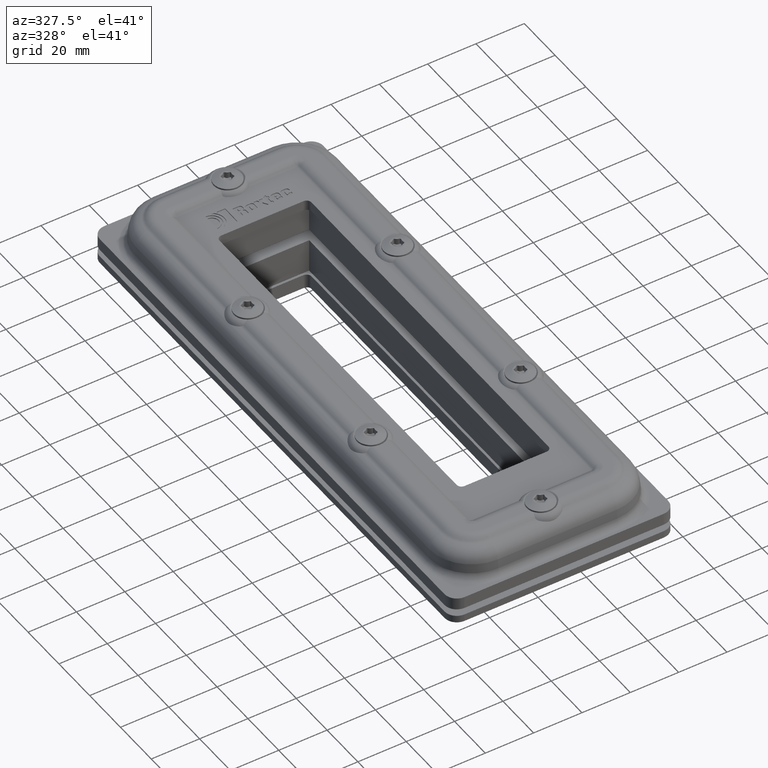
[diagram: clean part render]
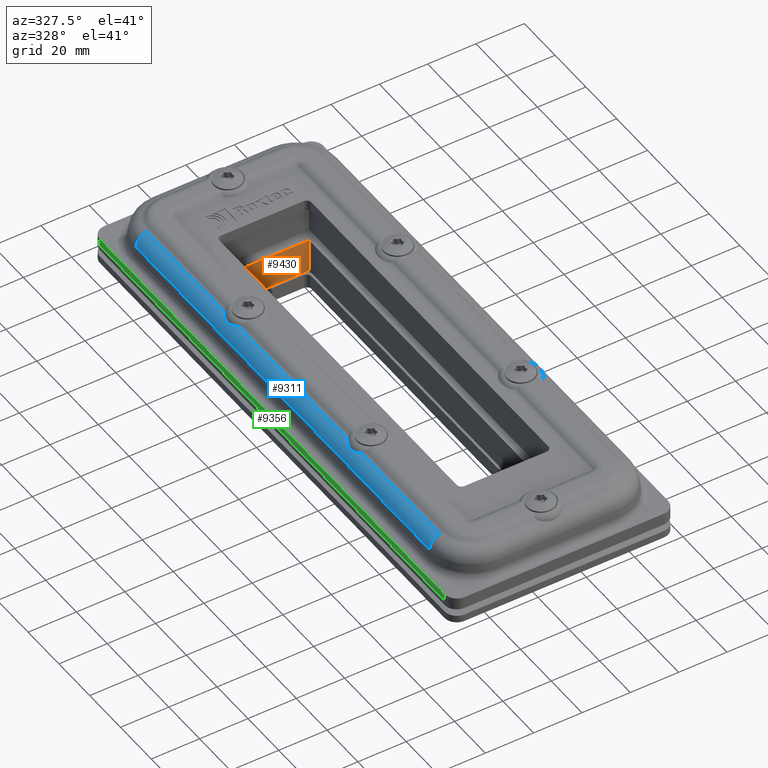
[diagram: same view with three faces highlighted in distinct colors, each labeled with its STEP entity id]
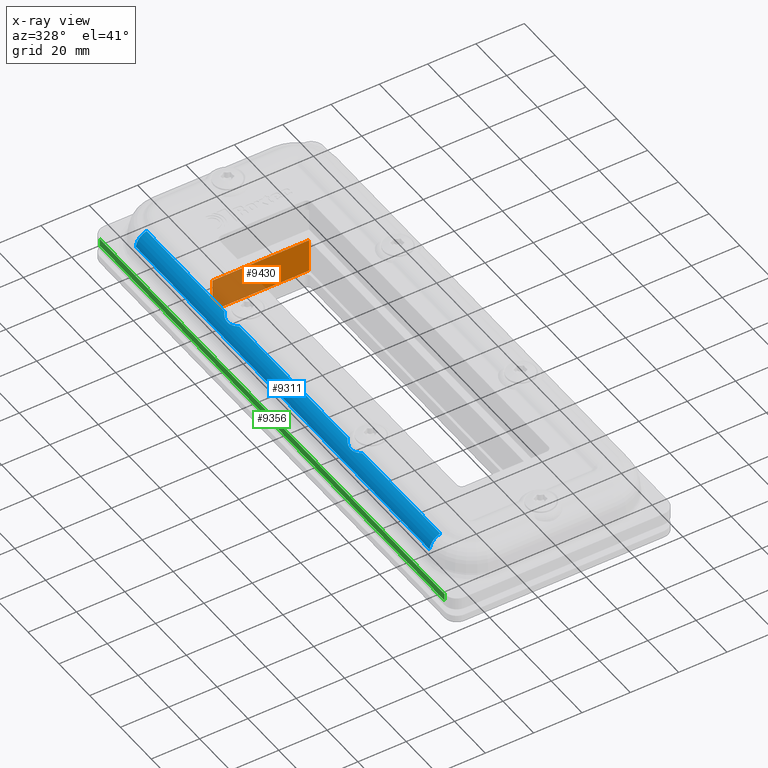
[diagram: x-ray of the same camera — body ghosted, the three highlighted faces saturated]
A machine part, auxiliary view with three faces highlighted in distinct colors.
The next image is the same camera in x-ray (body ghosted, the three faces saturated) — at least one of them is partly hidden behind the body in this view.
Their STEP definitions:

[orange] entity #9430 — the highlighted planar face has unit normal (0, 1, 0).
#361=PLANE('',#10258);
#835=FACE_OUTER_BOUND('',#1419,.T.);
#1419=EDGE_LOOP('',(#8098,#8099,#8100,#8101));
#2415=LINE('',#17274,#3071);
#2416=LINE('',#17276,#3072);
#2417=LINE('',#17278,#3073);
#2418=LINE('',#17279,#3074);
#3071=VECTOR('',#12407,1.);
#3072=VECTOR('',#12408,1.);
#3073=VECTOR('',#12409,1.);
#3074=VECTOR('',#12410,1.);
#4356=VERTEX_POINT('',#17272);
#4357=VERTEX_POINT('',#17273);
#4358=VERTEX_POINT('',#17275);
#4359=VERTEX_POINT('',#17277);
#5645=EDGE_CURVE('',#4356,#4357,#2415,.T.);
#5646=EDGE_CURVE('',#4356,#4358,#2416,.T.);
#5647=EDGE_CURVE('',#4358,#4359,#2417,.T.);
#5648=EDGE_CURVE('',#4357,#4359,#2418,.T.);
#8098=ORIENTED_EDGE('',*,*,#5645,.F.);
#8099=ORIENTED_EDGE('',*,*,#5646,.T.);
#8100=ORIENTED_EDGE('',*,*,#5647,.T.);
#8101=ORIENTED_EDGE('',*,*,#5648,.F.);
#9430=ADVANCED_FACE('',(#835),#361,.F.);
#10258=AXIS2_PLACEMENT_3D('',#17271,#12405,#12406);
#12405=DIRECTION('center_axis',(2.08154245121876E-16,1.,4.49084690960502E-16));
#12406=DIRECTION('ref_axis',(1.,-2.08154245121876E-16,-6.41847686111422E-17));
#12407=DIRECTION('',(1.,-2.08154245121876E-16,-6.41847686111422E-17));
#12408=DIRECTION('',(-6.41847686111421E-17,4.49084690960502E-16,-1.));
#12409=DIRECTION('',(1.,-2.08154245121876E-16,-6.41847686111422E-17));
#12410=DIRECTION('',(-6.41847686111421E-17,4.49084690960502E-16,-1.));
#17271=CARTESIAN_POINT('Origin',(-2.,8.00000000000001,-1.60000000000003));
#17272=CARTESIAN_POINT('',(-2.,8.00000000000001,-1.60000000000003));
#17273=CARTESIAN_POINT('',(2.,8.00000000000001,-1.60000000000003));
#17274=CARTESIAN_POINT('',(-1.87,8.00000000000001,-1.60000000000003));
#17275=CARTESIAN_POINT('',(-2.,8.00000000000001,-3.00000000000003));
#17276=CARTESIAN_POINT('',(-2.,8.00000000000001,-1.60000000000003));
#17277=CARTESIAN_POINT('',(2.,8.00000000000001,-3.00000000000003));
#17278=CARTESIAN_POINT('',(-2.,8.00000000000001,-3.00000000000003));
#17279=CARTESIAN_POINT('',(2.,8.00000000000001,-1.60000000000003));

[blue] entity #9311 — the highlighted cylindrical surface (edge-blend (fillet) strip) has radius 6 mm, axis along (0, 1, 0).
#716=FACE_OUTER_BOUND('',#1294,.T.);
#1294=EDGE_LOOP('',(#7470,#7471,#7472,#7473,#7474,#7475,#7476,#7477));
#1730=B_SPLINE_CURVE_WITH_KNOTS('',3,(#15997,#15998,#15999,#16000,#16001,
#16002,#16003,#16004,#16005,#16006,#16007,#16008),.UNSPECIFIED.,.F.,.F.,
(4,2,2,2,2,4),(-1.91895913354319,-1.86349717679421,-1.59797408986448,-1.34982614163297,
-1.0833091023722,-0.843342349377996),.UNSPECIFIED.);
#1743=B_SPLINE_CURVE_WITH_KNOTS('',3,(#16142,#16143,#16144,#16145,#16146,
#16147,#16148,#16149,#16150,#16151,#16152,#16153),.UNSPECIFIED.,.F.,.F.,
(4,2,2,2,2,4),(0.843512230884209,1.08656045757677,1.35271131750076,1.60078708755334,
1.86676256612396,1.91929153316141),.UNSPECIFIED.);
#2311=LINE('',#16140,#2967);
#2312=LINE('',#16155,#2968);
#2313=LINE('',#16159,#2969);
#2314=LINE('',#16162,#2970);
#2967=VECTOR('',#11847,0.300000000000004);
#2968=VECTOR('',#11848,4.99368327549684);
#2969=VECTOR('',#11851,19.083);
#2970=VECTOR('',#11854,0.300000000000004);
#3390=CIRCLE('',#10031,0.600000000000007);
#3391=CIRCLE('',#10032,0.600000000000009);
#4183=VERTEX_POINT('',#15985);
#4184=VERTEX_POINT('',#15996);
#4199=VERTEX_POINT('',#16139);
#4200=VERTEX_POINT('',#16141);
#4201=VERTEX_POINT('',#16154);
#4202=VERTEX_POINT('',#16156);
#4203=VERTEX_POINT('',#16158);
#4204=VERTEX_POINT('',#16160);
#5346=EDGE_CURVE('',#4183,#4184,#1730,.T.);
#5362=EDGE_CURVE('',#4183,#4199,#2311,.T.);
#5363=EDGE_CURVE('',#4199,#4200,#1743,.T.);
#5364=EDGE_CURVE('',#4200,#4201,#2312,.T.);
#5365=EDGE_CURVE('',#4201,#4202,#3390,.F.);
#5366=EDGE_CURVE('',#4203,#4202,#2313,.F.);
#5367=EDGE_CURVE('',#4204,#4203,#3391,.F.);
#5368=EDGE_CURVE('',#4204,#4184,#2314,.T.);
#7470=ORIENTED_EDGE('',*,*,#5346,.F.);
#7471=ORIENTED_EDGE('',*,*,#5362,.T.);
#7472=ORIENTED_EDGE('',*,*,#5363,.T.);
#7473=ORIENTED_EDGE('',*,*,#5364,.T.);
#7474=ORIENTED_EDGE('',*,*,#5365,.T.);
#7475=ORIENTED_EDGE('',*,*,#5366,.F.);
#7476=ORIENTED_EDGE('',*,*,#5367,.F.);
#7477=ORIENTED_EDGE('',*,*,#5368,.T.);
#8904=CYLINDRICAL_SURFACE('',#10030,0.600000000000007);
#9311=ADVANCED_FACE('',(#716),#8904,.T.);
#10030=AXIS2_PLACEMENT_3D('',#16138,#11845,#11846);
#10031=AXIS2_PLACEMENT_3D('',#16157,#11849,#11850);
#10032=AXIS2_PLACEMENT_3D('',#16161,#11852,#11853);
#11845=DIRECTION('center_axis',(3.3306690738755E-16,1.,4.69422931792557E-16));
#11846=DIRECTION('ref_axis',(-1.,3.3306690738755E-16,7.95081593156027E-17));
#11847=DIRECTION('',(3.3306690738755E-16,1.,4.69422931792557E-16));
#11848=DIRECTION('',(3.3306690738755E-16,1.,4.69422931792557E-16));
#11849=DIRECTION('center_axis',(3.3306690738755E-16,1.,4.69422931792557E-16));
#11850=DIRECTION('ref_axis',(7.95081593156027E-17,-4.69422931792557E-16,
1.));
#11851=DIRECTION('',(-3.3306690738755E-16,-1.,-4.69422931792557E-16));
#11852=DIRECTION('center_axis',(3.3306690738755E-16,1.,4.69422931792557E-16));
#11853=DIRECTION('ref_axis',(1.,-3.3306690738755E-16,-7.95081593156025E-17));
#11854=DIRECTION('',(3.3306690738755E-16,1.,4.69422931792557E-16));
#15985=CARTESIAN_POINT('',(-3.74864831699293,-3.5233211048265,0.379993271241318));
#15996=CARTESIAN_POINT('',(-3.74864831699293,-4.4766788951735,0.379993271241318));
#15997=CARTESIAN_POINT('Ctrl Pts',(-3.74864831699405,-3.52332110482782,
0.37999327124103));
#15998=CARTESIAN_POINT('Ctrl Pts',(-3.76025560144831,-3.5370387328431,0.376918339496645));
#15999=CARTESIAN_POINT('Ctrl Pts',(-3.77142251226956,-3.55108132578953,
0.373586463703719));
#16000=CARTESIAN_POINT('Ctrl Pts',(-3.83322923488207,-3.63431030077484,
0.353301372037415));
#16001=CARTESIAN_POINT('Ctrl Pts',(-3.87177187365275,-3.70903738621396,
0.333107277603287));
#16002=CARTESIAN_POINT('Ctrl Pts',(-3.91926720297043,-3.86860129689593,
0.305524264318681));
#16003=CARTESIAN_POINT('Ctrl Pts',(-3.92909575312433,-3.9489850781177,0.298393437771137));
#16004=CARTESIAN_POINT('Ctrl Pts',(-3.92217600247792,-4.11809929030959,
0.302965515286321));
#16005=CARTESIAN_POINT('Ctrl Pts',(-3.90356260446841,-4.20227530640393,
0.315943655593903));
#16006=CARTESIAN_POINT('Ctrl Pts',(-3.84018126743179,-4.35248070535803,
0.348660357497264));
#16007=CARTESIAN_POINT('Ctrl Pts',(-3.79915412303582,-4.41699052769742,
0.366613577921345));
#16008=CARTESIAN_POINT('Ctrl Pts',(-3.74864831699295,-4.47667889517347,
0.37999327124132));
#16138=CARTESIAN_POINT('Origin',(-3.595,-10.49565,-0.200000000000033));
#16139=CARTESIAN_POINT('',(-3.74864831699293,3.5233211048265,0.379993271241321));
#16140=CARTESIAN_POINT('',(-3.74864831699294,-9.5415,0.379993271241315));
#16141=CARTESIAN_POINT('',(-3.74864831699293,4.4766788951735,0.379993271241322));
#16142=CARTESIAN_POINT('Ctrl Pts',(-3.74864831699295,3.52332110482653,0.379993271241323));
#16143=CARTESIAN_POINT('Ctrl Pts',(-3.79979311677227,3.58376464276603,0.366444299557196));
#16144=CARTESIAN_POINT('Ctrl Pts',(-3.8412099615148,3.64914435346024,0.348208114895888));
#16145=CARTESIAN_POINT('Ctrl Pts',(-3.90431403930152,3.80042765595405,0.315466406937452));
#16146=CARTESIAN_POINT('Ctrl Pts',(-3.92258347165545,3.88458350260808,0.30269722160476));
#16147=CARTESIAN_POINT('Ctrl Pts',(-3.92891421372364,4.0535692782626,0.298512488392256));
#16148=CARTESIAN_POINT('Ctrl Pts',(-3.91881719896813,4.13386903364418,0.305826846253737));
#16149=CARTESIAN_POINT('Ctrl Pts',(-3.87075226169613,4.29332974183474,0.333653890398999));
#16150=CARTESIAN_POINT('Ctrl Pts',(-3.83186836619392,4.36801651969654,0.35391455607212));
#16151=CARTESIAN_POINT('Ctrl Pts',(-3.77024240437308,4.4504002447036,0.373937542952075));
#16152=CARTESIAN_POINT('Ctrl Pts',(-3.75964305548591,4.46368518132375,0.377080611476144));
#16153=CARTESIAN_POINT('Ctrl Pts',(-3.74864831699293,4.4766788951735,0.37999327124133));
#16154=CARTESIAN_POINT('',(-3.74864831699293,9.5415,0.379993271241368));
#16155=CARTESIAN_POINT('',(-3.74864831699295,4.54781672450316,0.379993271241386));
#16156=CARTESIAN_POINT('',(-4.19267338854167,9.5415,-0.147212495520764));
#16157=CARTESIAN_POINT('Origin',(-3.595,9.5415,-0.199999999999944));
#16158=CARTESIAN_POINT('',(-4.19267338854165,-9.5415,-0.147212495520875));
#16159=CARTESIAN_POINT('',(-4.19267338854167,9.5415,-0.147212495520764));
#16160=CARTESIAN_POINT('',(-3.74864831699294,-9.5415,0.379993271241316));
#16161=CARTESIAN_POINT('Origin',(-3.595,-9.5415,-0.200000000000003));
#16162=CARTESIAN_POINT('',(-3.74864831699294,-9.5415,0.379993271241315));

[green] entity #9356 — the highlighted planar face has unit normal (-1, 0, 0).
#344=PLANE('',#10132);
#761=FACE_OUTER_BOUND('',#1339,.T.);
#1339=EDGE_LOOP('',(#7757,#7758,#7759,#7760));
#2009=LINE('',#14331,#2665);
#2361=LINE('',#16909,#3017);
#2362=LINE('',#16911,#3018);
#2363=LINE('',#16912,#3019);
#2665=VECTOR('',#11191,22.4);
#3017=VECTOR('',#12101,0.30000000000004);
#3018=VECTOR('',#12102,0.30000000000004);
#3019=VECTOR('',#12103,22.4);
#3879=VERTEX_POINT('',#14323);
#3881=VERTEX_POINT('',#14329);
#4303=VERTEX_POINT('',#16908);
#4304=VERTEX_POINT('',#16910);
#4906=EDGE_CURVE('',#3881,#3879,#2009,.T.);
#5528=EDGE_CURVE('',#4303,#3879,#2361,.F.);
#5529=EDGE_CURVE('',#4304,#3881,#2362,.F.);
#5530=EDGE_CURVE('',#4304,#4303,#2363,.T.);
#7757=ORIENTED_EDGE('',*,*,#5528,.T.);
#7758=ORIENTED_EDGE('',*,*,#4906,.F.);
#7759=ORIENTED_EDGE('',*,*,#5529,.F.);
#7760=ORIENTED_EDGE('',*,*,#5530,.T.);
#9356=ADVANCED_FACE('',(#761),#344,.T.);
#10132=AXIS2_PLACEMENT_3D('',#16907,#12099,#12100);
#11191=DIRECTION('',(3.3306690738755E-16,1.,4.69422931792557E-16));
#12099=DIRECTION('center_axis',(-1.,3.3306690738755E-16,7.89299181569447E-17));
#12100=DIRECTION('ref_axis',(7.89299181569447E-17,-4.69422931792557E-16,
1.));
#12101=DIRECTION('',(7.95081593155929E-17,-4.69422931792557E-16,1.));
#12102=DIRECTION('',(7.95081593155929E-17,-4.69422931792557E-16,1.));
#12103=DIRECTION('',(3.3306690738755E-16,1.,4.69422931792557E-16));
#14323=CARTESIAN_POINT('',(-4.625,11.2,-1.10000000000003));
#14329=CARTESIAN_POINT('',(-4.625,-11.2,-1.10000000000004));
#14331=CARTESIAN_POINT('',(-4.625,-11.2,-1.10000000000004));
#16907=CARTESIAN_POINT('Origin',(-4.625,-12.32,-0.785000000000002));
#16908=CARTESIAN_POINT('',(-4.625,11.2,-0.799999999999993));
#16909=CARTESIAN_POINT('',(-4.625,11.2,-1.10000000000003));
#16910=CARTESIAN_POINT('',(-4.625,-11.2,-0.800000000000004));
#16911=CARTESIAN_POINT('',(-4.625,-11.2,-1.10000000000004));
#16912=CARTESIAN_POINT('',(-4.625,-11.2,-0.800000000000004));